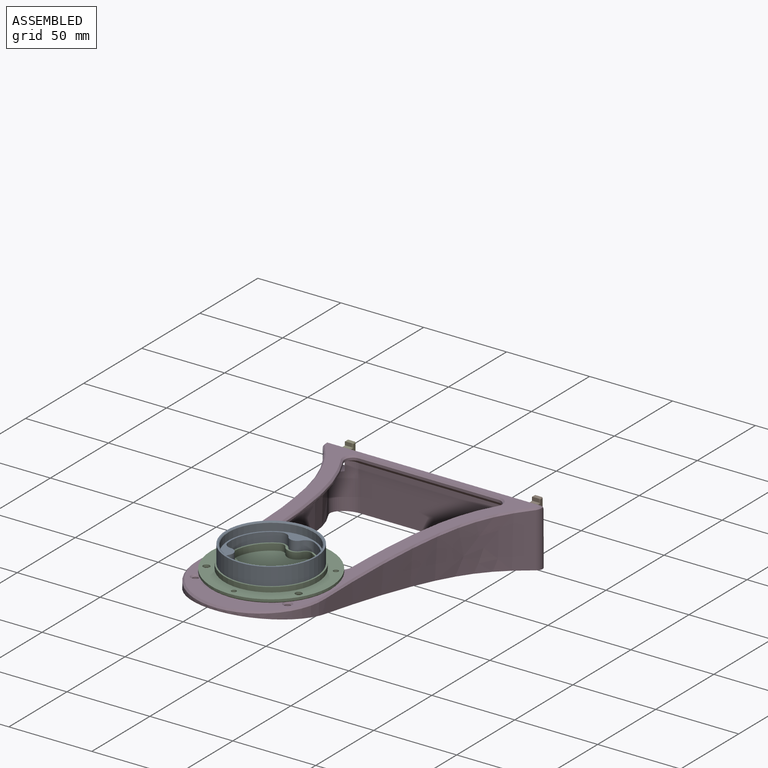
[diagram: assembled view]
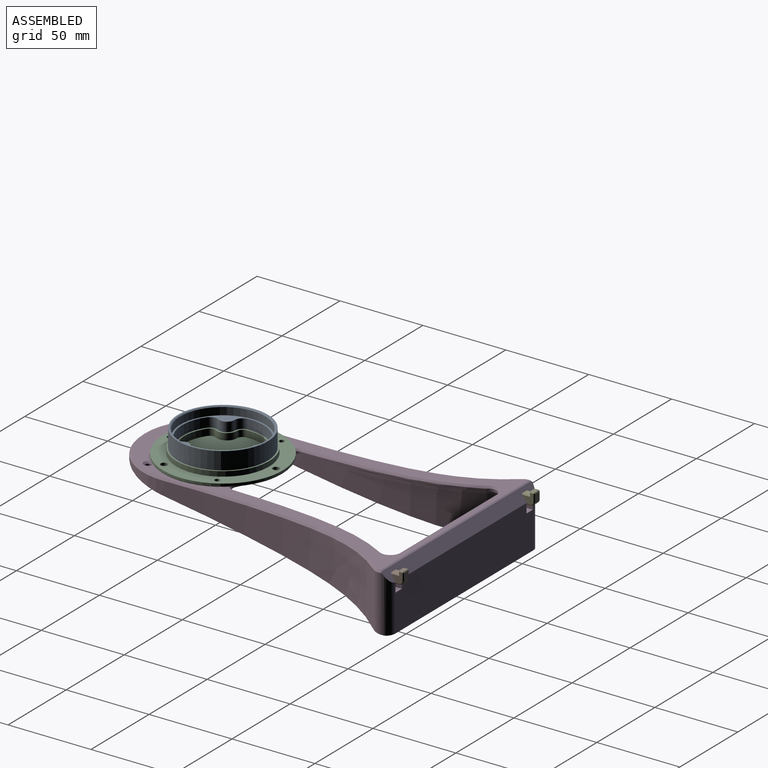
[diagram: assembled view, second angle]
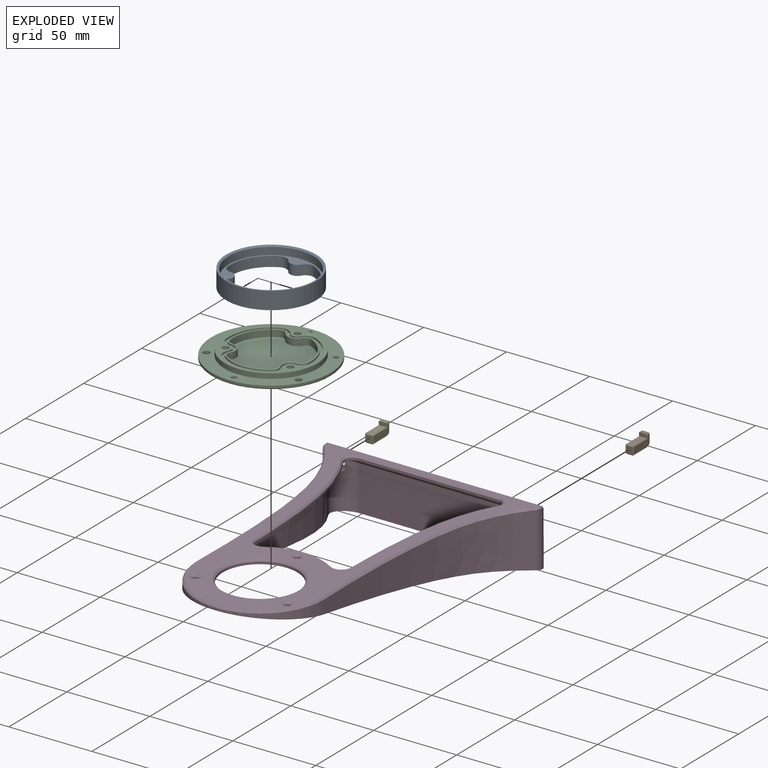
[diagram: exploded view]
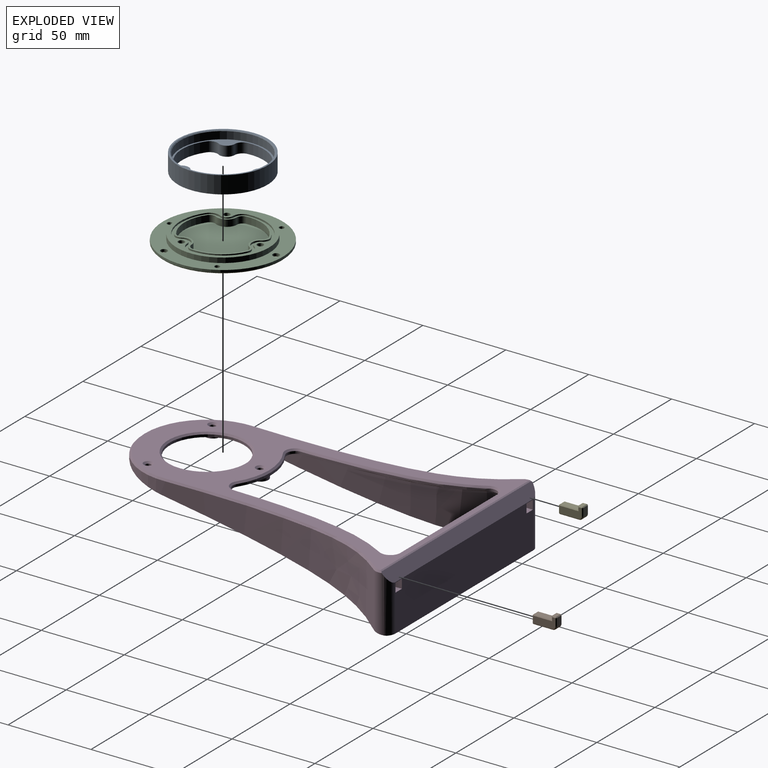
[diagram: exploded view, second angle]
ASSEMBLY  parts=5 mates=4
PART A: 37 faces, bbox 54.2x54.2x11 mm
  f0: plane 51.2x51.2mm, normal (0,0,-1), area 338.2mm2, adj f1,f3,f4,f5,f7,f8,f9,f10
  f1: cylinder r=4.5mm len=7.77mm, axis (0,0,-1), area 56.2mm2, adj f0,f9,f10,f35
  f2: plane 54.2x54.2mm, normal (0,0,1), area 482.9mm2, adj f6,f15,f17,f19,f23,f24,f25,f26
  f3: cylinder r=24.6mm len=24.6mm, axis (0,0,-1), area 181.7mm2, adj f0,f9,f13,f35
  f4: cylinder r=24.6mm len=24.6mm, axis (0,0,-1), area 181.7mm2, adj f0,f10,f12,f35
  f5: cylinder r=24.6mm len=28.41mm, axis (0,0,-1), area 181.7mm2, adj f0,f11,f14,f35
  f6: cylinder r=27.1mm len=54.2mm, axis (0,0,-1), area 1787.9mm2, adj f2,f22
  f7: cylinder r=4.5mm len=6.73mm, axis (0,0,-1), area 56.2mm2, adj f0,f13,f14,f35
  f8: cylinder r=4.5mm len=6.73mm, axis (0,0,-1), area 56.2mm2, adj f0,f11,f12,f35
  f9: cylinder r=5mm len=6.41mm, axis (0,0,-1), area 44.2mm2, adj f0,f1,f3,f35
  f10: cylinder r=5mm len=6.41mm, axis (0,0,1), area 44.2mm2, adj f0,f1,f4,f35
  f11: cylinder r=5mm len=6.56mm, axis (0,0,-1), area 44.2mm2, adj f0,f5,f8,f35
  f12: cylinder r=5mm len=6mm, axis (0,0,1), area 44.2mm2, adj f0,f4,f8,f35
  f13: cylinder r=5mm len=6mm, axis (0,0,-1), area 44.2mm2, adj f0,f3,f7,f35
  f14: cylinder r=5mm len=6.56mm, axis (0,0,1), area 44.2mm2, adj f0,f5,f7,f35
  f15: cylinder r=1.5mm len=4.5mm, axis (0,0,1), area 42.4mm2, adj f2,f16
  f16: plane 3x3mm, normal (0,0,1), area 7.1mm2, adj f15
  f17: cylinder r=1.5mm len=4.5mm, axis (0,0,1), area 42.4mm2, adj f2,f18
  f18: plane 3x3mm, normal (0,0,1), area 7.1mm2, adj f17
  f19: cylinder r=1.5mm len=4.5mm, axis (0,0,1), area 42.4mm2, adj f2,f20
  f20: plane 3x3mm, normal (0,0,1), area 7.1mm2, adj f19
  f21: cylinder r=25.6mm len=51.2mm, axis (0,0,1), area 723.8mm2, adj f0,f36
  f22: plane 54.2x54.2mm, normal (0,0,-1), area 167.1mm2, adj f6,f36
  f23: cylinder r=25.1mm len=25.1mm, axis (0,0,-1), area 15.5mm2, adj f2,f24,f34,f35
  f24: cylinder r=5.5mm len=5.45mm, axis (0,0,-1), area 4.1mm2, adj f2,f23,f25,f35
  f25: cylinder r=4mm len=5.98mm, axis (0,0,-1), area 4.2mm2, adj f2,f24,f26,f35
  f26: cylinder r=5.5mm len=7.21mm, axis (0,0,-1), area 4.1mm2, adj f2,f25,f27,f35
  f27: cylinder r=25.1mm len=28.99mm, axis (0,0,-1), area 15.5mm2, adj f2,f26,f28,f35
  f28: cylinder r=5.5mm len=7.21mm, axis (0,0,-1), area 4.1mm2, adj f2,f27,f29,f35
  f29: cylinder r=4mm len=5.98mm, axis (0,0,-1), area 4.2mm2, adj f2,f28,f30,f35
  f30: cylinder r=5.5mm len=5.45mm, axis (0,0,-1), area 4.1mm2, adj f2,f29,f31,f35
  f31: cylinder r=25.1mm len=25.1mm, axis (0,0,-1), area 15.5mm2, adj f2,f30,f32,f35
  f32: cylinder r=5.5mm len=7.05mm, axis (0,0,-1), area 4.1mm2, adj f2,f31,f33,f35
  f33: cylinder r=4mm len=6.91mm, axis (0,0,-1), area 4.2mm2, adj f2,f32,f34,f35
  f34: cylinder r=5.5mm len=7.05mm, axis (0,0,-1), area 4.1mm2, adj f2,f23,f33,f35
  f35: plane 50.2x48.4mm, normal (0,0,1), area 82.4mm2, adj f1,f3,f4,f5,f7,f8,f9,f10
  f36: cone r=26.1mm half-angle=45deg, axis (0,0,-1), area 114.8mm2, adj f21,f22
PART B: 32 faces, bbox 14.6x5x7.5 mm
  f0: plane 4x2.2mm, normal (-1,0,0), area 8.8mm2, adj f1,f5,f22,f23
  f1: plane 11.1x4mm, normal (0,0,1), area 44.4mm2, adj f0,f10,f18,f19
  f2: plane 4.3x4mm, normal (-1,0,0), area 17.2mm2, adj f9,f10,f11,f12
  f3: plane 11.6x4mm, normal (0,0,-1), area 46.4mm2, adj f8,f12,f17,f20
  f4: plane 4.5x4mm, normal (1,0,0), area 18mm2, adj f8,f25,f28,f31
  f5: plane 4x2.5mm, normal (0,0,1), area 10mm2, adj f0,f26,f27,f31
  f6: plane 13.6x6.5mm, normal (0,-1,0), area 62mm2, adj f9,f17,f18,f21,f22,f25,f26
  f7: plane 13.6x6.5mm, normal (0,1,0), area 62mm2, adj f11,f19,f20,f23,f24,f27,f28
  f8: cylinder r=2.5mm len=4mm, axis (0,-1,0), area 15.7mm2, adj f3,f4,f21,f24
  f9: plane 4.3x0.5mm, normal (-0.71,-0.71,0), area 3mm2, adj f2,f6,f13,f14
  f10: plane 4x0.5mm, normal (-0.71,0,0.71), area 2.8mm2, adj f1,f2,f14,f15
  f11: plane 4.3x0.5mm, normal (-0.71,0.71,0), area 3mm2, adj f2,f7,f15,f16
  f12: plane 4x0.5mm, normal (-0.71,0,-0.71), area 2.8mm2, adj f2,f3,f13,f16
  f13: plane 0.5x0.5mm, normal (-0.58,-0.58,-0.58), area 0.2mm2, adj f9,f12,f17
  f14: plane 0.5x0.5mm, normal (-0.58,-0.58,0.58), area 0.2mm2, adj f9,f10,f18
  f15: plane 0.5x0.5mm, normal (-0.58,0.58,0.58), area 0.2mm2, adj f10,f11,f19
  f16: plane 0.5x0.5mm, normal (-0.58,0.58,-0.58), area 0.2mm2, adj f11,f12,f20
  f17: plane 11.6x0.5mm, normal (0,-0.71,-0.71), area 8.2mm2, adj f3,f6,f13,f21
  f18: plane 11.6x0.5mm, normal (0,-0.71,0.71), area 8mm2, adj f1,f6,f14,f22
  f19: plane 11.6x0.5mm, normal (0,0.71,0.71), area 8mm2, adj f1,f7,f15,f23
  f20: plane 11.6x0.5mm, normal (0,0.71,-0.71), area 8.2mm2, adj f3,f7,f16,f24
  f21: cone r=2mm half-angle=45deg, axis (0,1,0), area 2.5mm2, adj f6,f8,f17,f25
  f22: plane 2.7x0.5mm, normal (-0.71,-0.71,0), area 1.6mm2, adj f0,f6,f18,f26
  f23: plane 2.7x0.5mm, normal (-0.71,0.71,0), area 1.6mm2, adj f0,f7,f19,f27
  f24: cone r=2mm half-angle=45deg, axis (0,-1,0), area 2.5mm2, adj f7,f8,f20,f28
  f25: plane 4.5x0.5mm, normal (0.71,-0.71,0), area 3.2mm2, adj f4,f6,f21,f29
  f26: plane 2.5x0.5mm, normal (0,-0.71,0.71), area 1.6mm2, adj f5,f6,f22,f29
  f27: plane 2.5x0.5mm, normal (0,0.71,0.71), area 1.6mm2, adj f5,f7,f23,f30
  f28: plane 4.5x0.5mm, normal (0.71,0.71,0), area 3.2mm2, adj f4,f7,f24,f30
  f29: plane 0.5x0.5mm, normal (0.58,-0.58,0.58), area 0.2mm2, adj f25,f26,f31
  f30: plane 0.5x0.5mm, normal (0.58,0.58,0.58), area 0.2mm2, adj f27,f28,f31
  f31: plane 4x0.5mm, normal (0.71,0,0.71), area 2.8mm2, adj f4,f5,f29,f30
PART C: 69 faces, bbox 72.2x72.2x5 mm
  f0: plane 56x56mm, normal (0,0,-1), area 542mm2, adj f5,f22,f23,f24,f25,f26,f27,f28
  f1: cylinder r=1.5mm len=3mm, axis (0,0,-1), area 14.1mm2, adj f7,f62
  f2: cylinder r=2mm len=4mm, axis (0,0,1), area 18.8mm2, adj f7,f63
  f3: cylinder r=1.5mm len=3mm, axis (0,0,-1), area 14.1mm2, adj f7,f64
  f4: cylinder r=2mm len=4mm, axis (0,0,1), area 18.8mm2, adj f7,f65
  f5: cylinder r=28mm len=56mm, axis (0,0,-1), area 527.8mm2, adj f0,f7
  f6: cylinder r=36.1mm len=72.2mm, axis (0,0,1), area 340.2mm2, adj f7,f68
  f7: plane 72.2x72.2mm, normal (0,0,-1), area 1572.2mm2, adj f1,f2,f3,f4,f5,f6,f9,f10
  f8: plane 71.2x71.2mm, normal (0,0,1), area 3741.6mm2, adj f59,f60,f61,f62,f63,f64,f65,f66
  f9: cylinder r=2mm len=4mm, axis (0,0,1), area 18.8mm2, adj f7,f67
  f10: cylinder r=1.5mm len=3mm, axis (0,0,-1), area 14.1mm2, adj f7,f66
  f11: cylinder r=4.5mm len=4.46mm, axis (0,0,-1), area 6.6mm2, adj f12,f34,f35,f36
  f12: cylinder r=24.1mm len=24.1mm, axis (0,0,-1), area 29.7mm2, adj f11,f13,f35,f36
  f13: cylinder r=4.5mm len=5.77mm, axis (0,0,-1), area 6.6mm2, adj f12,f14,f35,f36
  f14: cylinder r=5mm len=8.63mm, axis (0,0,-1), area 10.4mm2, adj f13,f15,f35,f36
  f15: cylinder r=4.5mm len=5.77mm, axis (0,0,-1), area 6.6mm2, adj f14,f16,f35,f36
  f16: cylinder r=24.1mm len=24.1mm, axis (0,0,-1), area 29.7mm2, adj f15,f17,f35,f36
  f17: cylinder r=4.5mm len=4.46mm, axis (0,0,-1), area 6.6mm2, adj f16,f18,f35,f36
  f18: cylinder r=5mm len=7.47mm, axis (0,0,-1), area 10.4mm2, adj f17,f19,f35,f36
  f19: cylinder r=4.5mm len=5.9mm, axis (0,0,-1), area 6.6mm2, adj f18,f20,f35,f36
  f20: cylinder r=24.1mm len=27.83mm, axis (0,0,-1), area 29.7mm2, adj f19,f21,f35,f36
  f21: cylinder r=4.5mm len=5.9mm, axis (0,0,-1), area 6.6mm2, adj f20,f34,f35,f36
  f22: cylinder r=3.5mm len=5.23mm, axis (0,0,-1), area 7.3mm2, adj f0,f23,f33,f35
  f23: cylinder r=6mm len=5.94mm, axis (0,0,-1), area 8.8mm2, adj f0,f22,f24,f35
  f24: cylinder r=25.6mm len=25.6mm, axis (0,0,-1), area 31.5mm2, adj f0,f23,f25,f35
  f25: cylinder r=6mm len=7.69mm, axis (0,0,-1), area 8.8mm2, adj f0,f24,f26,f35
  f26: cylinder r=3.5mm len=6.04mm, axis (0,0,-1), area 7.3mm2, adj f0,f25,f27,f35
  f27: cylinder r=6mm len=7.69mm, axis (0,0,-1), area 8.8mm2, adj f0,f26,f28,f35
  f28: cylinder r=25.6mm len=25.6mm, axis (0,0,-1), area 31.5mm2, adj f0,f27,f29,f35
  f29: cylinder r=6mm len=5.94mm, axis (0,0,-1), area 8.8mm2, adj f0,f28,f30,f35
  f30: cylinder r=3.5mm len=5.23mm, axis (0,0,-1), area 7.3mm2, adj f0,f29,f31,f35
  f31: cylinder r=6mm len=7.87mm, axis (0,0,-1), area 8.8mm2, adj f0,f30,f32,f35
  f32: cylinder r=25.6mm len=29.56mm, axis (0,0,-1), area 31.5mm2, adj f0,f31,f33,f35
  f33: cylinder r=6mm len=7.87mm, axis (0,0,-1), area 8.8mm2, adj f0,f22,f32,f35
  f34: cylinder r=5mm len=7.47mm, axis (0,0,-1), area 10.4mm2, adj f11,f21,f35,f36
  f35: plane 51.2x49.4mm, normal (0,0,-1), area 247.1mm2, adj f11,f12,f13,f14,f15,f16,f17,f18
  f36: plane 48.2x46.4mm, normal (0,0,-1), area 156.9mm2, adj f11,f12,f13,f14,f15,f16,f17,f18
  f37: cylinder r=3.4mm len=6.8mm, axis (0,0,1), area 10.7mm2, adj f43,f59
  f38: cylinder r=3.4mm len=6.8mm, axis (0,0,1), area 10.7mm2, adj f45,f60
  f39: cylinder r=3.4mm len=6.8mm, axis (0,0,1), area 10.7mm2, adj f41,f61
  f40: cylinder r=1.9mm len=3.8mm, axis (0,0,1), area 29.8mm2, adj f0,f41
  f41: cone r=1.9mm half-angle=45deg, axis (0,0,1), area 35.3mm2, adj f39,f40
  f42: cylinder r=1.9mm len=3.8mm, axis (0,0,1), area 29.8mm2, adj f0,f43
  f43: cone r=1.9mm half-angle=45deg, axis (0,0,1), area 35.3mm2, adj f37,f42
  f44: cylinder r=1.9mm len=3.8mm, axis (0,0,1), area 29.8mm2, adj f0,f45
  f45: cone r=1.9mm half-angle=45deg, axis (0,0,1), area 35.3mm2, adj f38,f44
  f46: plane 46.2x44.4mm, normal (0,0,-1), area 1483mm2, adj f47,f48,f49,f50,f51,f52,f53,f54
  f47: cylinder r=23.1mm len=26.68mm, axis (0,0,-1), area 113.8mm2, adj f36,f46,f48,f58
  f48: cylinder r=3.5mm len=4.59mm, axis (0,0,-1), area 20.6mm2, adj f36,f46,f47,f49
  f49: cylinder r=6mm len=8.97mm, axis (0,0,-1), area 50mm2, adj f36,f46,f48,f50
  f50: cylinder r=3.5mm len=4mm, axis (0,0,-1), area 20.6mm2, adj f36,f46,f49,f51
  f51: cylinder r=23.1mm len=23.1mm, axis (0,0,-1), area 113.8mm2, adj f36,f46,f50,f52
  f52: cylinder r=3.5mm len=4.49mm, axis (0,0,-1), area 20.6mm2, adj f36,f46,f51,f53
  f53: cylinder r=6mm len=10.36mm, axis (0,0,-1), area 50mm2, adj f36,f46,f52,f54
  f54: cylinder r=3.5mm len=4.49mm, axis (0,0,-1), area 20.6mm2, adj f36,f46,f53,f55
  f55: cylinder r=23.1mm len=23.1mm, axis (0,0,-1), area 113.8mm2, adj f36,f46,f54,f56
  f56: cylinder r=3.5mm len=4mm, axis (0,0,-1), area 20.6mm2, adj f36,f46,f55,f57
  f57: cylinder r=6mm len=8.97mm, axis (0,0,-1), area 50mm2, adj f36,f46,f56,f58
  f58: cylinder r=3.5mm len=4.59mm, axis (0,0,-1), area 20.6mm2, adj f36,f46,f47,f57
  f59: cone r=3.4mm half-angle=45deg, axis (0,0,1), area 16.2mm2, adj f8,f37
  f60: cone r=3.4mm half-angle=45deg, axis (0,0,1), area 16.2mm2, adj f8,f38
  f61: cone r=3.4mm half-angle=45deg, axis (0,0,1), area 16.2mm2, adj f8,f39
  f62: cone r=2mm half-angle=45deg, axis (0,0,1), area 7.8mm2, adj f1,f8
  f63: cone r=2mm half-angle=45deg, axis (0,0,1), area 10mm2, adj f2,f8
  f64: cone r=2mm half-angle=45deg, axis (0,0,1), area 7.8mm2, adj f3,f8
  f65: cone r=2mm half-angle=45deg, axis (0,0,1), area 10mm2, adj f4,f8
  f66: cone r=2mm half-angle=45deg, axis (0,0,1), area 7.8mm2, adj f8,f10
  f67: cone r=2mm half-angle=45deg, axis (0,0,1), area 10mm2, adj f8,f9
  f68: cone r=35.6mm half-angle=45deg, axis (0,0,-1), area 159.3mm2, adj f6,f8
PART D: 87 faces, bbox 133.2x196.2x47.5 mm
  f0: cylinder r=10mm len=27.59mm, axis (0,0,1), area 515.2mm2, adj f2,f30,f37,f38,f48,f77,f78,f80
  f1: plane 118.5x28mm, normal (0,1,0), area 3259.5mm2, adj f25,f32,f33,f36,f77,f78,f79,f81
  f2: bspline ~27.01x25.35mm, area 149.8mm2, adj f0,f30,f35,f38,f78,f79,f80
  f3: plane 9.55x9.51mm, normal (0,0,-1), area 40.3mm2, adj f4,f9,f10,f11,f12,f13,f14,f28
  f4: cylinder r=4.77mm len=9.55mm, axis (0,0,1), area 71.2mm2, adj f3,f28,f35
  f5: plane 6.55x5.67mm, normal (0,0,-1), area 18.2mm2, adj f9,f10,f11,f12,f13,f14,f15
  f6: plane 9.55x9.51mm, normal (0,0,-1), area 40.3mm2, adj f7,f16,f17,f18,f19,f20,f21,f28
  f7: cylinder r=4.77mm len=9.55mm, axis (0,0,1), area 71.2mm2, adj f6,f28,f35
  f8: plane 6.55x5.67mm, normal (0,0,-1), area 18.2mm2, adj f16,f17,f18,f19,f20,f21,f22
  f9: plane 3.28x3mm, normal (0,-1,0), area 9.8mm2, adj f3,f5,f10,f14
  f10: plane 3x2.84mm, normal (0.87,-0.5,0), area 9.8mm2, adj f3,f5,f9,f11
  f11: plane 3x2.84mm, normal (0.87,0.5,0), area 9.8mm2, adj f3,f5,f10,f12
  f12: plane 3.28x3mm, normal (0,1,0), area 9.8mm2, adj f3,f5,f11,f13
  f13: plane 3x2.84mm, normal (-0.87,0.5,0), area 9.8mm2, adj f3,f5,f12,f14
  f14: plane 3x2.84mm, normal (-0.87,-0.5,0), area 9.8mm2, adj f3,f5,f9,f13
  f15: cylinder r=1.75mm len=3.5mm, axis (0,0,1), area 16.5mm2, adj f5,f59
  f16: plane 3x2.84mm, normal (-0.87,0.5,0), area 9.8mm2, adj f6,f8,f17,f21
  f17: plane 3x2.84mm, normal (-0.87,-0.5,0), area 9.8mm2, adj f6,f8,f16,f18
  f18: plane 3.28x3mm, normal (0,-1,0), area 9.8mm2, adj f6,f8,f17,f19
  f19: plane 3x2.84mm, normal (0.87,-0.5,0), area 9.8mm2, adj f6,f8,f18,f20
  f20: plane 3x2.84mm, normal (0.87,0.5,0), area 9.8mm2, adj f6,f8,f19,f21
  f21: plane 3.28x3mm, normal (0,1,0), area 9.8mm2, adj f6,f8,f16,f20
  f22: cylinder r=1.75mm len=3.5mm, axis (0,0,1), area 16.5mm2, adj f8,f60
  f23: plane 6.55x5.67mm, normal (0,0,-1), area 18.2mm2, adj f50,f51,f52,f53,f54,f55,f56
  f24: cylinder r=38.5mm len=77mm, axis (0,0,1), area 497.2mm2, adj f26,f27,f48,f75
  f25: plane 128.24x2.5mm, normal (0,0,-1), area 313.3mm2, adj f1,f32,f33,f37,f48
  f26: extruded ~143.52x32.76mm, area 3106.9mm2, adj f24,f32,f48,f73,f75
  f27: extruded ~143.52x32.76mm, area 3106.9mm2, adj f24,f33,f48,f75,f76
  f28: cylinder r=36mm len=72mm, axis (0,0,1), area 286.5mm2, adj f3,f4,f6,f7,f29,f30,f35,f48
  f29: extruded ~135.5x29.88mm, area 2544.1mm2, adj f28,f31,f35,f39,f48
  f30: extruded ~135.5x29.88mm, area 2544.1mm2, adj f0,f2,f28,f35,f48
  f31: cylinder r=10mm len=27.59mm, axis (0,0,1), area 515.2mm2, adj f29,f37,f38,f39,f48,f82,f83,f85
  f32: cylinder r=6mm len=34mm, axis (0,0,1), area 431.6mm2, adj f1,f25,f26,f36,f48,f71
  f33: cylinder r=6mm len=34mm, axis (0,0,1), area 431.6mm2, adj f1,f25,f27,f36,f48,f74
  f34: plane 186.99x128.5mm, normal (0,0,1), area 5302.7mm2, adj f59,f60,f61,f62,f63,f64,f65,f66
  f35: plane 184.72x107.41mm, normal (0,0,-1), area 4821.6mm2, adj f2,f4,f7,f28,f29,f30,f38,f39
  f36: plane 132.68x9.27mm, normal (0,0.81,0.58), area 1028.6mm2, adj f1,f32,f33,f71,f72,f74
  f37: plane 93.02x27.2mm, normal (0,-1,0), area 2529.9mm2, adj f0,f25,f31,f38
  f38: plane 95.41x5.35mm, normal (0,-0.81,-0.58), area 605.7mm2, adj f0,f2,f31,f35,f37,f39
  f39: bspline ~27.01x25.35mm, area 149.8mm2, adj f29,f31,f35,f38,f83,f84,f85
  f40: plane 84.12x1.5mm, normal (0,-1,0), area 126.2mm2, adj f35,f44,f47,f63
  f41: extruded ~100.82x18.11mm, area 155.3mm2, adj f35,f44,f45,f67
  f42: cylinder r=38.5mm len=41.2mm, axis (0,0,1), area 65.2mm2, adj f35,f45,f46,f70
  f43: extruded ~100.82x18.11mm, area 155.3mm2, adj f35,f46,f47,f66
  f44: cylinder r=5mm len=7.51mm, axis (0,0,1), area 15.7mm2, adj f35,f40,f41,f65
  f45: cylinder r=5mm len=7.68mm, axis (0,0,1), area 15.9mm2, adj f35,f41,f42,f69
  f46: cylinder r=5mm len=7.68mm, axis (0,0,1), area 15.9mm2, adj f35,f42,f43,f68
  f47: cylinder r=5mm len=7.51mm, axis (0,0,1), area 15.7mm2, adj f35,f40,f43,f64
  f48: plane 191.92x131.42mm, normal (0,-0.17,-0.99), area 1251.5mm2, adj f0,f24,f25,f26,f27,f28,f29,f30
  f49: cylinder r=22.5mm len=45mm, axis (0,0,1), area 212.1mm2, adj f35,f62
  f50: cylinder r=1.75mm len=3.5mm, axis (0,0,1), area 16.5mm2, adj f23,f61
  f51: plane 3x2.84mm, normal (0.87,0.5,0), area 9.8mm2, adj f23,f52,f56,f58
  f52: plane 3.28x3mm, normal (0,1,0), area 9.8mm2, adj f23,f51,f53,f58
  f53: plane 3x2.84mm, normal (-0.87,0.5,0), area 9.8mm2, adj f23,f52,f54,f58
  f54: plane 3x2.84mm, normal (-0.87,-0.5,0), area 9.8mm2, adj f23,f53,f55,f58
  f55: plane 3.28x3mm, normal (0,-1,0), area 9.8mm2, adj f23,f54,f56,f58
  f56: plane 3x2.84mm, normal (0.87,-0.5,0), area 9.8mm2, adj f23,f51,f55,f58
  f57: cylinder r=4.77mm len=9.55mm, axis (0,0,1), area 90mm2, adj f35,f58
  f58: plane 9.55x9.55mm, normal (0,0,-1), area 43.8mm2, adj f51,f52,f53,f54,f55,f56,f57
  f59: cone r=1.75mm half-angle=45deg, axis (0,0,1), area 20mm2, adj f15,f34
  f60: cone r=1.75mm half-angle=45deg, axis (0,0,1), area 20mm2, adj f22,f34
  f61: cone r=1.75mm half-angle=45deg, axis (0,0,1), area 20mm2, adj f34,f50
  f62: cone r=22.5mm half-angle=45deg, axis (0,0,1), area 204.4mm2, adj f34,f49
  f63: plane 84.12x1mm, normal (0,-0.71,0.71), area 119mm2, adj f34,f40,f64,f65
  f64: cone r=6mm half-angle=45deg, axis (0,0,1), area 16.3mm2, adj f34,f47,f63,f66
  f65: cone r=6mm half-angle=45deg, axis (0,0,1), area 16.3mm2, adj f34,f44,f63,f67
  f66: bspline ~100.83x18.98mm, area 146.1mm2, adj f34,f43,f64,f68
  f67: bspline ~100.83x18.98mm, area 146.1mm2, adj f34,f41,f65,f69
  f68: cone r=6mm half-angle=45deg, axis (0,0,1), area 16.5mm2, adj f34,f46,f66,f70
  f69: cone r=6mm half-angle=45deg, axis (0,0,1), area 16.5mm2, adj f34,f45,f67,f70
  f70: cone r=37.5mm half-angle=45deg, axis (0,0,-1), area 60.7mm2, adj f34,f42,f68,f69
  f71: cone r=5mm half-angle=45deg, axis (0,0,-1), area 7.1mm2, adj f32,f34,f36,f72,f73
  f72: plane 129.03x0.83mm, normal (0,0.46,0.89), area 117.8mm2, adj f34,f36,f71,f74
  f73: bspline ~151.65x26.81mm, area 210.8mm2, adj f26,f34,f71,f75
  f74: cone r=5mm half-angle=45deg, axis (0,0,-1), area 7.1mm2, adj f33,f34,f36,f72,f76
  f75: cone r=37.5mm half-angle=45deg, axis (0,0,-1), area 173.6mm2, adj f24,f26,f27,f34,f73,f76
  f76: bspline ~151.65x26.81mm, area 210.8mm2, adj f27,f34,f74,f75
  f77: plane 10x5.4mm, normal (0,0,1), area 47.3mm2, adj f0,f1,f78,f80,f81
  f78: plane 5.69x5.4mm, normal (1,0,0), area 30mm2, adj f0,f1,f2,f77,f79
  f79: plane 10x5.4mm, normal (0,0,-1), area 48.9mm2, adj f1,f2,f78,f80,f81
  f80: plane 5.4x3.48mm, normal (0,1,0), area 16mm2, adj f0,f2,f77,f79,f81
  f81: plane 10x5.4mm, normal (-1,0,0), area 54mm2, adj f1,f77,f79,f80
  f82: plane 10x5.4mm, normal (0,0,1), area 47.3mm2, adj f1,f31,f83,f85,f86
  f83: plane 5.69x5.4mm, normal (-1,0,0), area 30mm2, adj f1,f31,f39,f82,f84
  f84: plane 10x5.4mm, normal (0,0,-1), area 48.9mm2, adj f1,f39,f83,f85,f86
  f85: plane 5.4x3.48mm, normal (0,1,0), area 16mm2, adj f31,f39,f82,f84,f86
  f86: plane 10x5.4mm, normal (1,0,0), area 54mm2, adj f1,f82,f84,f85
PART E: same geometry as B
PLACE A rot(axis=(0,-1,0),180deg) t=(0,-145.5,10.5)mm
PLACE B rot(axis=(0,0,1),90deg) t=(53.9,0,-0.5)mm
PLACE C rot(axis=(0,1,0),180deg) t=(0,-145.5,10.5)mm
PLACE D at identity fixed
PLACE E rot(axis=(0,0,1),90deg) t=(-58.9,0,-0.5)mm
MATE planar D.f80 <-> B.f2  axis (0,1,0) through (57.62,-10,-9.96)mm
MATE fastened A.f8 <-> C.f18  axis (0,0,-1) through (-19.57,-156.8,5)mm
MATE planar E.f2 <-> D.f85  axis (0,-1,0) through (-56.4,-10,-5.35)mm
MATE fastened D.f50 <-> C.f38  axis (0,0,1) through (0,-122.9,0)mm
